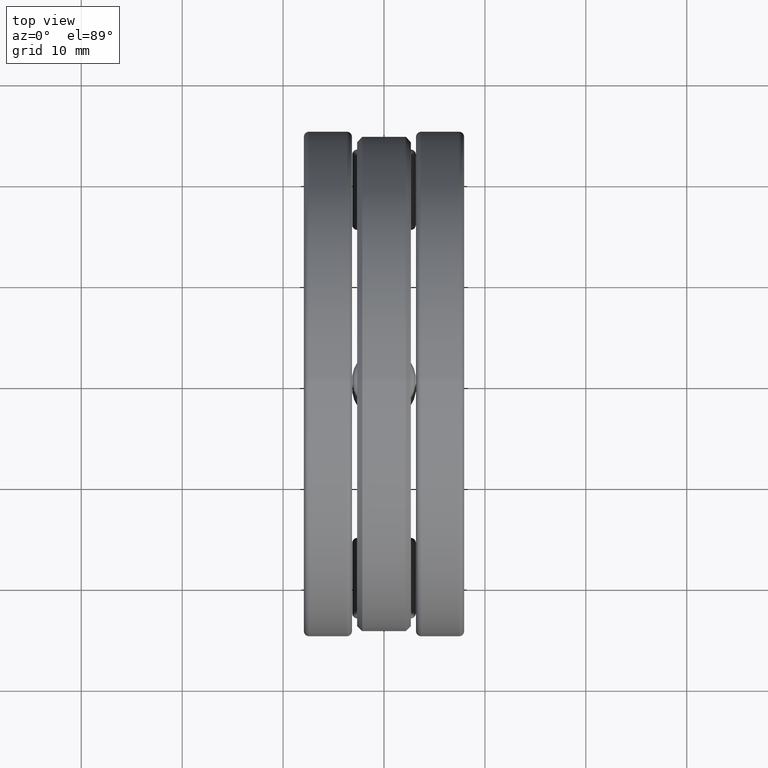
[diagram: clean part render]
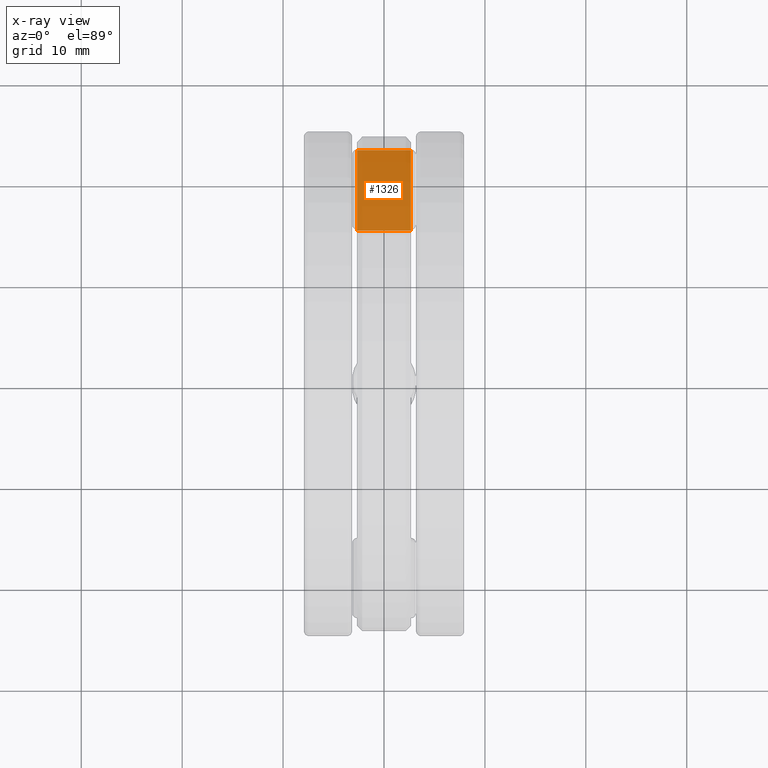
[diagram: x-ray — body ghosted, one internal face saturated and labeled with its STEP entity id]
A machine part, top view, then the same camera in x-ray: the body is ghosted and one INTERNAL B-rep face — a face not visible from any outside direction — is saturated and labeled: STEP entity #1326.
In plain terms, the highlighted planar face has unit normal (0, 0, -1).
Its self-contained STEP definition (entity closure, byte-faithful):
#26 = EDGE_CURVE ( 'NONE', #305, #507, #1103, .T. ) ;
#79 = ORIENTED_EDGE ( 'NONE', *, *, #380, .F. ) ;
#110 = LINE ( 'NONE', #984, #820 ) ;
#119 = CARTESIAN_POINT ( 'NONE',  ( 0.1050000000000000200, 1.642550356374733500E-017, -0.1250000000000000300 ) ) ;
#136 = DIRECTION ( 'NONE',  ( 0.0000000000000000000, 5.452790406515504400E-017, -1.000000000000000000 ) ) ;
#155 = ORIENTED_EDGE ( 'NONE', *, *, #26, .T. ) ;
#289 = DIRECTION ( 'NONE',  ( 1.000000000000000000, -0.0000000000000000000, -0.0000000000000000000 ) ) ;
#305 = VERTEX_POINT ( 'NONE', #604 ) ;
#317 = DIRECTION ( 'NONE',  ( -0.0000000000000000000, 1.000000000000000000, 5.452790406515504400E-017 ) ) ;
#349 = ORIENTED_EDGE ( 'NONE', *, *, #504, .F. ) ;
#380 = EDGE_CURVE ( 'NONE', #417, #507, #1080, .T. ) ;
#417 = VERTEX_POINT ( 'NONE', #1305 ) ;
#449 = EDGE_CURVE ( 'NONE', #580, #305, #1334, .T. ) ;
#456 = PLANE ( 'NONE',  #755 ) ;
#504 = EDGE_CURVE ( 'NONE', #580, #417, #110, .T. ) ;
#507 = VERTEX_POINT ( 'NONE', #989 ) ;
#580 = VERTEX_POINT ( 'NONE', #1096 ) ;
#604 = CARTESIAN_POINT ( 'NONE',  ( 0.1050000000000000400, 0.6012500000000000600, -0.1250000000000000000 ) ) ;
#613 = CARTESIAN_POINT ( 'NONE',  ( -0.3125000000000000000, 0.6012500000000000600, -0.1250000000000000000 ) ) ;
#614 = VECTOR ( 'NONE', #741, 39.37007874015748100 ) ;
#674 = CARTESIAN_POINT ( 'NONE',  ( -0.3125000000000000000, 0.6012500000000000600, -0.1250000000000000000 ) ) ;
#675 = EDGE_LOOP ( 'NONE', ( #155, #79, #349, #1084 ) ) ;
#739 = VECTOR ( 'NONE', #1120, 39.37007874015748100 ) ;
#741 = DIRECTION ( 'NONE',  ( 1.000000000000000000, -0.0000000000000000000, -0.0000000000000000000 ) ) ;
#755 = AXIS2_PLACEMENT_3D ( 'NONE', #674, #136, #1152 ) ;
#774 = VECTOR ( 'NONE', #289, 39.37007874015748100 ) ;
#820 = VECTOR ( 'NONE', #317, 39.37007874015748100 ) ;
#855 = CARTESIAN_POINT ( 'NONE',  ( -0.3125000000000000000, 0.9143749999999996000, -0.1249999999999999900 ) ) ;
#984 = CARTESIAN_POINT ( 'NONE',  ( -0.1049999999999999700, -7.598285325260019500E-018, -0.1250000000000000300 ) ) ;
#989 = CARTESIAN_POINT ( 'NONE',  ( 0.1050000000000000400, 0.9143749999999996000, -0.1249999999999999900 ) ) ;
#1080 = LINE ( 'NONE', #855, #774 ) ;
#1084 = ORIENTED_EDGE ( 'NONE', *, *, #449, .T. ) ;
#1096 = CARTESIAN_POINT ( 'NONE',  ( -0.1049999999999999700, 0.6012500000000000600, -0.1250000000000000000 ) ) ;
#1103 = LINE ( 'NONE', #119, #739 ) ;
#1120 = DIRECTION ( 'NONE',  ( -0.0000000000000000000, 1.000000000000000000, 5.452790406515504400E-017 ) ) ;
#1152 = DIRECTION ( 'NONE',  ( 0.0000000000000000000, 1.000000000000000000, 5.452790406515504400E-017 ) ) ;
#1243 = FACE_OUTER_BOUND ( 'NONE', #675, .T. ) ;
#1305 = CARTESIAN_POINT ( 'NONE',  ( -0.1049999999999999700, 0.9143749999999996000, -0.1249999999999999900 ) ) ;
#1326 = ADVANCED_FACE ( 'NONE', ( #1243 ), #456, .F. ) ;
#1334 = LINE ( 'NONE', #613, #614 ) ;